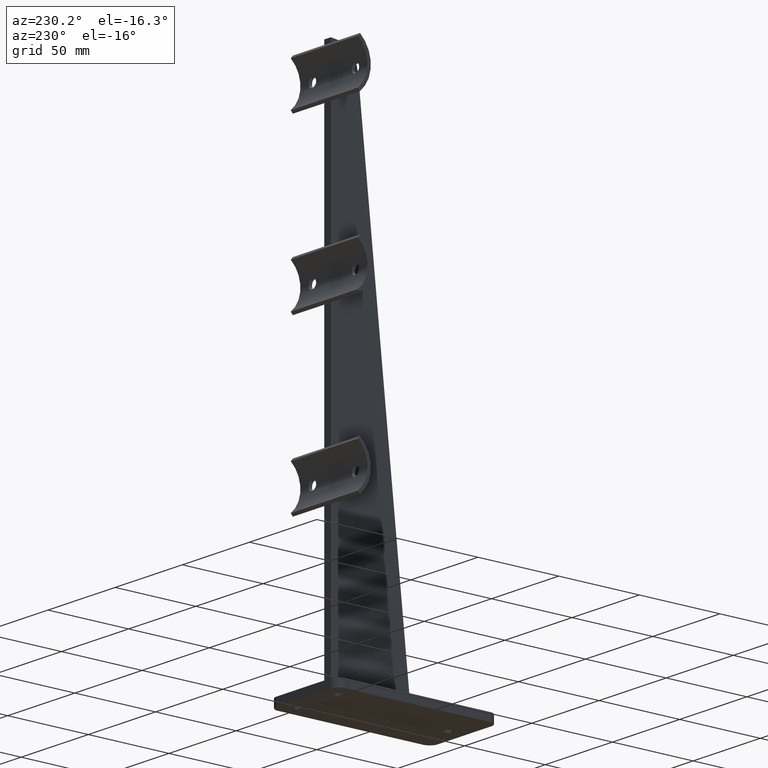
[diagram: clean part render]
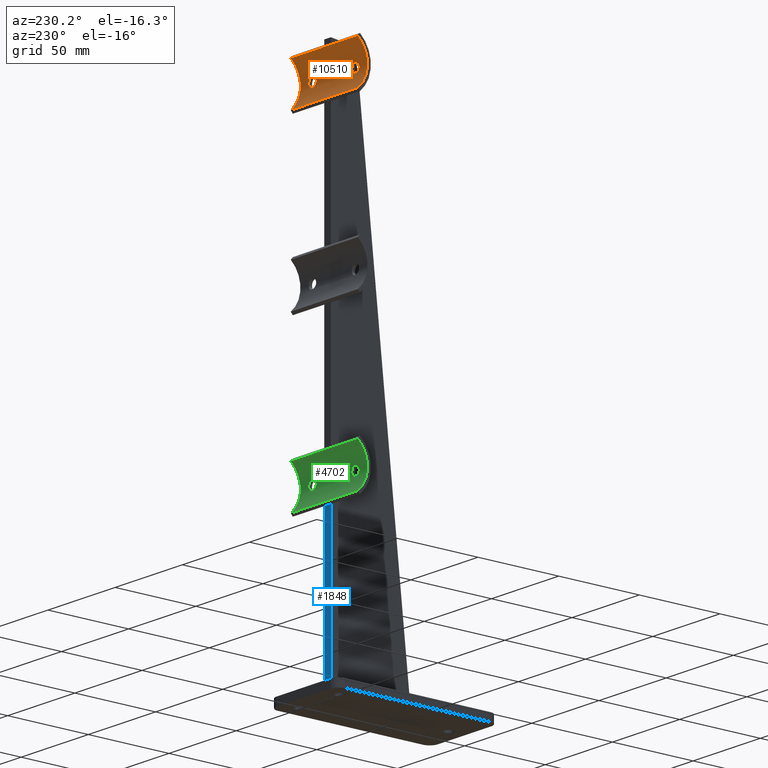
[diagram: same view with three faces highlighted in distinct colors, each labeled with its STEP entity id]
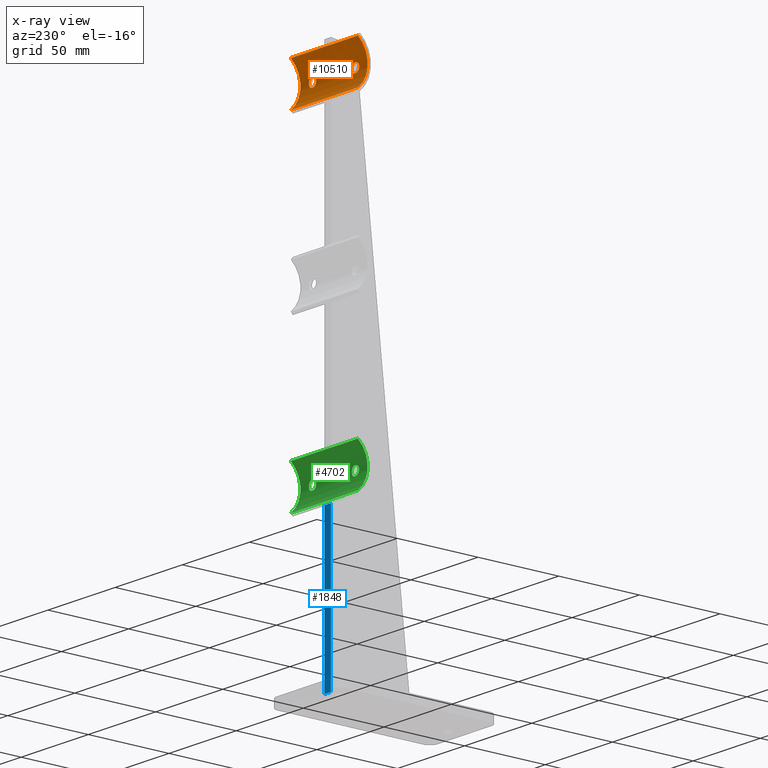
[diagram: x-ray of the same camera — body ghosted, the three highlighted faces saturated]
A machine part, auxiliary view with three faces highlighted in distinct colors.
The next image is the same camera in x-ray (body ghosted, the three faces saturated) — at least one of them is partly hidden behind the body in this view.
Their STEP definitions:

[orange] entity #10510 — the highlighted cylindrical surface (edge-blend (fillet) strip) has radius 16.85 mm, axis along (-1, -0, -0).
#27 = CARTESIAN_POINT ( 'NONE',  ( -18.74989674068944723, 31.00001685240702543, 312.3187487400900864 ) ) ;
#65 = CARTESIAN_POINT ( 'NONE',  ( -17.81710139316977859, 31.12738984087914673, 314.5720614007789777 ) ) ;
#277 = VERTEX_POINT ( 'NONE', #9987 ) ;
#355 = B_SPLINE_CURVE_WITH_KNOTS ( 'NONE', 3,
 ( #6839, #2045, #5811, #8663, #10500, #4831, #8623, #2080, #1149, #3061, #1020, #7671, #979, #4955, #5735, #5774, #27, #6679, #1934, #8587, #2906, #9532, #3823, #4794, #9617, #65, #2941, #11459, #1972, #9576, #11500, #2296, #4070, #2690, #9992, #4252, #443, #1437, #8330, #5168, #7127, #11207, #2647, #4291, #8083, #7081, #8983, #4551, #12134, #3301, #3577, #7372, #10962, #10286, #2386, #9029, #9950, #5266, #3618, #11929, #9280, #10923, #1477, #527 ),
 .UNSPECIFIED., .T., .F.,
 ( 4, 2, 2, 2, 2, 2, 2, 2, 2, 2, 2, 2, 2, 2, 2, 2, 2, 2, 2, 2, 2, 2, 2, 2, 2, 2, 2, 2, 2, 2, 2, 4 ),
 ( 0.000000000000000000, 0.0005381924915633046549, 0.001076384983126609310, 0.001614577474689914182, 0.002152769966253218620, 0.002690962457816523275, 0.003229154949379828363, 0.003767347440943133018, 0.004305539932506437240, 0.004843732424069741895, 0.005381924915633046549, 0.005920117407196351204, 0.006458309898759656727, 0.006996502390322961382, 0.007534694881886266037, 0.008072887373449570692, 0.008611079865012874479, 0.009149272356576180001, 0.009687464848139488993, 0.01022565733970280145, 0.01076384983126611045, 0.01130204232282942117, 0.01184023481439273016, 0.01237842730595604263, 0.01291661979751935335, 0.01345481228908266234, 0.01399300478064597307, 0.01453119727220928380, 0.01506938976377259452, 0.01614577474689909628, 0.01668396723846234803, 0.01722215973002559283 ),
 .UNSPECIFIED. ) ;
#443 = CARTESIAN_POINT ( 'NONE',  ( -15.11386030004125480, 31.20313993747728176, 315.1094738047402757 ) ) ;
#527 = CARTESIAN_POINT ( 'NONE',  ( -15.99999999999996270, 31.22592107814688944, 309.7500000000000568 ) ) ;
#580 = CARTESIAN_POINT ( 'NONE',  ( 18.75014658436252191, 30.99997607674375999, 312.3205098373551323 ) ) ;
#624 = CARTESIAN_POINT ( 'NONE',  ( 13.92864394951007512, 31.09784472354248663, 310.6822973231390961 ) ) ;
#662 = CARTESIAN_POINT ( 'NONE',  ( 18.38770309398687175, 31.05561526023968000, 311.1238799557505672 ) ) ;
#718 = ORIENTED_EDGE ( 'NONE', *, *, #2082, .F. ) ;
#745 = VERTEX_POINT ( 'NONE', #10810 ) ;
#910 = CARTESIAN_POINT ( 'NONE',  ( 17.67755991845479357, 31.14216066407071537, 314.6865117806228227 ) ) ;
#979 = CARTESIAN_POINT ( 'NONE',  ( -18.47137229060054864, 31.04336206135850773, 311.2806231436685493 ) ) ;
#1020 = CARTESIAN_POINT ( 'NONE',  ( -18.18508113167607831, 31.08322744553565187, 310.8205359700820054 ) ) ;
#1149 = CARTESIAN_POINT ( 'NONE',  ( -17.81816963109477570, 31.12726304320736759, 310.4290538148147789 ) ) ;
#1266 = AXIS2_PLACEMENT_3D ( 'NONE', #9526, #12310, #3819 ) ;
#1437 = CARTESIAN_POINT ( 'NONE',  ( -14.78278412133348851, 31.18223707666055944, 314.9724446627155885 ) ) ;
#1477 = CARTESIAN_POINT ( 'NONE',  ( -15.81799534347532266, 31.22592107814690365, 309.7500000000000568 ) ) ;
#1526 = CARTESIAN_POINT ( 'NONE',  ( 18.73176264400263236, 31.00300256753123307, 312.8634836499048788 ) ) ;
#1563 = CARTESIAN_POINT ( 'NONE',  ( 18.66143908557382147, 31.01426261333763179, 313.2151150261996690 ) ) ;
#1596 = DIRECTION ( 'NONE',  ( -1.000000000000000000, -0.000000000000000000, -0.000000000000000000 ) ) ;
#1608 = CARTESIAN_POINT ( 'NONE',  ( 13.26764482324741934, 31.00290692692793471, 312.1401204898583615 ) ) ;
#1631 = ORIENTED_EDGE ( 'NONE', *, *, #4262, .F. ) ;
#1823 = CARTESIAN_POINT ( 'NONE',  ( 18.18818081424955579, 31.08281872234005760, 310.8246799812064864 ) ) ;
#1864 = CARTESIAN_POINT ( 'NONE',  ( 15.81930940758915050, 31.22590944330035967, 315.2499296659554489 ) ) ;
#1907 = CARTESIAN_POINT ( 'NONE',  ( 16.18200465652468978, 31.22592107814690010, 309.7500000000001137 ) ) ;
#1934 = CARTESIAN_POINT ( 'NONE',  ( -18.73217889185071172, 31.00293502748650099, 312.8606549452418903 ) ) ;
#1953 = CIRCLE ( 'NONE', #4537, 16.85000000000002984 ) ;
#1972 = CARTESIAN_POINT ( 'NONE',  ( -17.22018565463240591, 31.18202765517759545, 314.9710464121199607 ) ) ;
#2031 = CARTESIAN_POINT ( 'NONE',  ( -25.00000000000000000, 47.84999999999998010, 312.5000000000000000 ) ) ;
#2045 = CARTESIAN_POINT ( 'NONE',  ( -16.18200465652462228, 31.22592107814687523, 309.7500000000000000 ) ) ;
#2072 = EDGE_CURVE ( 'NONE', #5321, #6694, #5891, .T. ) ;
#2080 = CARTESIAN_POINT ( 'NONE',  ( -17.67698453963376792, 31.14221262062448758, 310.3131112287670703 ) ) ;
#2082 = EDGE_CURVE ( 'NONE', #7453, #7453, #355, .T. ) ;
#2130 = EDGE_CURVE ( 'NONE', #5321, #745, #3062, .T. ) ;
#2296 = CARTESIAN_POINT ( 'NONE',  ( -16.36315093520889263, 31.22289082453801967, 315.2318530200204805 ) ) ;
#2386 = CARTESIAN_POINT ( 'NONE',  ( -13.61229690601312647, 31.05561526023966934, 311.1238799557504535 ) ) ;
#2528 = CARTESIAN_POINT ( 'NONE',  ( 16.88613969995874697, 31.20313993747728532, 315.1094738047402757 ) ) ;
#2647 = CARTESIAN_POINT ( 'NONE',  ( -13.81430204444213139, 31.08314245748785964, 314.1785069477888896 ) ) ;
#2690 = CARTESIAN_POINT ( 'NONE',  ( -15.82145666878412626, 31.22593264365529464, 315.2500699148872059 ) ) ;
#2749 = CARTESIAN_POINT ( 'NONE',  ( 16.71292685360889507, 31.21159035279317351, 315.1621610642596920 ) ) ;
#2790 = CARTESIAN_POINT ( 'NONE',  ( 14.18289860683022852, 31.12738984087915028, 314.5720614007791482 ) ) ;
#2906 = CARTESIAN_POINT ( 'NONE',  ( -18.60989468907389011, 31.02243631840571680, 313.3851467991336222 ) ) ;
#2941 = CARTESIAN_POINT ( 'NONE',  ( -17.67856677578232194, 31.14204833117519300, 314.6856238620794670 ) ) ;
#3017 = EDGE_CURVE ( 'NONE', #745, #277, #7652, .T. ) ;
#3061 = CARTESIAN_POINT ( 'NONE',  ( -18.07135605048988225, 31.09784472354248663, 310.6822973231390392 ) ) ;
#3062 = CIRCLE ( 'NONE', #1266, 16.85000000000002984 ) ;
#3301 = CARTESIAN_POINT ( 'NONE',  ( -13.24985341563747632, 30.99997607674376709, 312.3205098373550186 ) ) ;
#3353 = VECTOR ( 'NONE', #4869, 1000.000000000000000 ) ;
#3435 = CARTESIAN_POINT ( 'NONE',  ( 2.500000000000000000, 47.84999999999998010, 312.5000000000000000 ) ) ;
#3472 = CARTESIAN_POINT ( 'NONE',  ( 18.60974302326847152, 31.02245931335957962, 311.6144778964444981 ) ) ;
#3577 = CARTESIAN_POINT ( 'NONE',  ( -13.26754400383213905, 31.00288953943554660, 312.1416815823783395 ) ) ;
#3618 = CARTESIAN_POINT ( 'NONE',  ( -14.61308990710470290, 31.17143243507801387, 310.0984909594843657 ) ) ;
#3673 = CARTESIAN_POINT ( 'NONE',  ( 14.77981434536758698, 31.18202765517759545, 314.9710464121200175 ) ) ;
#3718 = CARTESIAN_POINT ( 'NONE',  ( 18.38517965336209414, 31.05597373240177106, 313.8804271613863079 ) ) ;
#3819 = DIRECTION ( 'NONE',  ( 0.000000000000000000, 0.000000000000000000, -1.000000000000000000 ) ) ;
#3823 = CARTESIAN_POINT ( 'NONE',  ( -18.38594512453174445, 31.05586323373942648, 313.8790573258363565 ) ) ;
#3832 = CARTESIAN_POINT ( 'NONE',  ( 17.38691009289529177, 31.17143243507800321, 310.0984909594846499 ) ) ;
#3876 = CARTESIAN_POINT ( 'NONE',  ( 16.00000000000004263, 31.22592107814689300, 309.7500000000000568 ) ) ;
#3951 = CARTESIAN_POINT ( 'NONE',  ( 16.00000000000003908, 31.22592107814688944, 309.7500000000000000 ) ) ;
#4070 = CARTESIAN_POINT ( 'NONE',  ( -16.18069059241085483, 31.22590944330036677, 315.2499296659556762 ) ) ;
#4131 = CARTESIAN_POINT ( 'NONE',  ( 15.81799534347538128, 31.22592107814688589, 309.7500000000000000 ) ) ;
#4233 = CARTESIAN_POINT ( 'NONE',  ( -25.00000000000000000, 36.99999999999998579, 299.6081421044133322 ) ) ;
#4252 = CARTESIAN_POINT ( 'NONE',  ( -15.28707314639110137, 31.21159035279317351, 315.1621610642596920 ) ) ;
#4262 = EDGE_CURVE ( 'NONE', #6130, #6130, #8030, .T. ) ;
#4291 = CARTESIAN_POINT ( 'NONE',  ( -13.61482034663790408, 31.05597373240177461, 313.8804271613863648 ) ) ;
#4349 = CARTESIAN_POINT ( 'NONE',  ( 15.28385126544351458, 31.21143786437674805, 315.1612084688597406 ) ) ;
#4381 = VECTOR ( 'NONE', #1596, 1000.000000000000000 ) ;
#4392 = CARTESIAN_POINT ( 'NONE',  ( 13.26782110814929183, 31.00293502748650809, 312.8606549452420040 ) ) ;
#4537 = AXIS2_PLACEMENT_3D ( 'NONE', #2031, #5836, #5872 ) ;
#4551 = CARTESIAN_POINT ( 'NONE',  ( -13.26823735599736587, 31.00300256753124373, 312.8634836499049356 ) ) ;
#4682 = CARTESIAN_POINT ( 'NONE',  ( 14.18183036890518167, 31.12726304320738535, 310.4290538148148357 ) ) ;
#4794 = CARTESIAN_POINT ( 'NONE',  ( -18.18706828623402316, 31.08296200054288860, 314.1766829028081247 ) ) ;
#4831 = CARTESIAN_POINT ( 'NONE',  ( -17.22046022213244143, 31.18200872366885434, 310.0290795493939981 ) ) ;
#4869 = DIRECTION ( 'NONE',  ( -1.000000000000000000, -0.000000000000000000, -0.000000000000000000 ) ) ;
#4912 = CARTESIAN_POINT ( 'NONE',  ( 25.00000000000000000, 36.99999999999998579, 299.6081421044133322 ) ) ;
#4955 = CARTESIAN_POINT ( 'NONE',  ( -18.60862586614666725, 31.02263161657873169, 311.6113875946309690 ) ) ;
#5094 = FACE_BOUND ( 'NONE', #5095, .T. ) ;
#5095 = EDGE_LOOP ( 'NONE', ( #1631 ) ) ;
#5140 = CARTESIAN_POINT ( 'NONE',  ( 15.63909404716797624, 31.22293374046324033, 309.7678897974528240 ) ) ;
#5168 = CARTESIAN_POINT ( 'NONE',  ( -14.32244008154515491, 31.14216066407069761, 314.6865117806228227 ) ) ;
#5266 = CARTESIAN_POINT ( 'NONE',  ( -14.30689312209700148, 31.14181291831045328, 310.3036388615917645 ) ) ;
#5321 = VERTEX_POINT ( 'NONE', #6048 ) ;
#5363 = CARTESIAN_POINT ( 'NONE',  ( 14.77953977786755857, 31.18200872366884013, 310.0290795493937708 ) ) ;
#5406 = CARTESIAN_POINT ( 'NONE',  ( 13.33840932580709193, 31.01423909893655306, 311.7850082820090734 ) ) ;
#5617 = CARTESIAN_POINT ( 'NONE',  ( 13.81491886832392346, 31.08322744553565897, 310.8205359700819486 ) ) ;
#5658 = CARTESIAN_POINT ( 'NONE',  ( 13.39137413385333097, 31.02263161657874235, 311.6113875946311396 ) ) ;
#5684 = ORIENTED_EDGE ( 'NONE', *, *, #2072, .T. ) ;
#5735 = CARTESIAN_POINT ( 'NONE',  ( -18.66159067419290096, 31.01423909893655662, 311.7850082820091302 ) ) ;
#5774 = CARTESIAN_POINT ( 'NONE',  ( -18.73235517675258066, 31.00290692692794181, 312.1401204898582478 ) ) ;
#5780 = CARTESIAN_POINT ( 'NONE',  ( 17.69310687790299141, 31.14181291831044973, 310.3036388615917076 ) ) ;
#5811 = CARTESIAN_POINT ( 'NONE',  ( -16.36090595283203086, 31.22293374046323322, 309.7678897974527672 ) ) ;
#5836 = DIRECTION ( 'NONE',  ( -1.000000000000000000, -0.000000000000000000, -0.000000000000000000 ) ) ;
#5872 = DIRECTION ( 'NONE',  ( 0.000000000000000000, 0.000000000000000000, -1.000000000000000000 ) ) ;
#5891 = LINE ( 'NONE', #4912, #3353 ) ;
#6048 = CARTESIAN_POINT ( 'NONE',  ( 25.00000000000000000, 36.99999999999998579, 299.6081421044133322 ) ) ;
#6107 = CARTESIAN_POINT ( 'NONE',  ( 15.11241139063678496, 31.20307164749258533, 309.8909470132709316 ) ) ;
#6130 = VERTEX_POINT ( 'NONE', #3951 ) ;
#6199 = EDGE_LOOP ( 'NONE', ( #10090, #11423, #10370, #5684 ) ) ;
#6270 = CARTESIAN_POINT ( 'NONE',  ( 18.60842119231626057, 31.02266602949436702, 313.3894934520704396 ) ) ;
#6306 = CARTESIAN_POINT ( 'NONE',  ( 13.25010325931055277, 31.00001685240703253, 312.3187487400902000 ) ) ;
#6350 = CARTESIAN_POINT ( 'NONE',  ( 18.47202851541238644, 31.04326647161761343, 311.2818115653267341 ) ) ;
#6561 = CARTESIAN_POINT ( 'NONE',  ( 13.24989764103138867, 30.99998329453298851, 312.6781042359648382 ) ) ;
#6604 = CARTESIAN_POINT ( 'NONE',  ( 13.92686523941881482, 31.09763536701752074, 314.3158766990432014 ) ) ;
#6642 = CARTESIAN_POINT ( 'NONE',  ( 16.71705282925607960, 31.21141090142647556, 309.8389572437604329 ) ) ;
#6679 = CARTESIAN_POINT ( 'NONE',  ( -18.75010235896860777, 30.99998329453298496, 312.6781042359647245 ) ) ;
#6694 = VERTEX_POINT ( 'NONE', #4233 ) ;
#6839 = CARTESIAN_POINT ( 'NONE',  ( -15.99999999999996270, 31.22592107814688944, 309.7500000000000568 ) ) ;
#6898 = FACE_OUTER_BOUND ( 'NONE', #6199, .T. ) ;
#7081 = CARTESIAN_POINT ( 'NONE',  ( -13.39157880768374120, 31.02266602949435637, 313.3894934520703828 ) ) ;
#7127 = CARTESIAN_POINT ( 'NONE',  ( -14.18414299862430639, 31.12751637135916738, 314.5729912559881996 ) ) ;
#7231 = CARTESIAN_POINT ( 'NONE',  ( 18.66271072627281669, 31.01406095546569830, 311.7895920555115481 ) ) ;
#7269 = CARTESIAN_POINT ( 'NONE',  ( 15.11245027784419293, 31.20307254880669845, 315.1090570889351170 ) ) ;
#7309 = CARTESIAN_POINT ( 'NONE',  ( 13.61387030798286446, 31.05584336001782120, 311.1210278927150057 ) ) ;
#7372 = CARTESIAN_POINT ( 'NONE',  ( -13.33728927372719042, 31.01406095546569830, 311.7895920555115481 ) ) ;
#7453 = VERTEX_POINT ( 'NONE', #9582 ) ;
#7517 = CARTESIAN_POINT ( 'NONE',  ( 13.33810570095380754, 31.01419060602339428, 313.2135770647291793 ) ) ;
#7562 = CARTESIAN_POINT ( 'NONE',  ( 14.61891083212111297, 31.16930847246860026, 314.8847705964345209 ) ) ;
#7640 = CYLINDRICAL_SURFACE ( 'NONE', #11354, 16.85000000000002984 ) ;
#7652 = LINE ( 'NONE', #8374, #4381 ) ;
#7671 = CARTESIAN_POINT ( 'NONE',  ( -18.38612969201714975, 31.05584336001781764, 311.1210278927151762 ) ) ;
#7678 = CARTESIAN_POINT ( 'NONE',  ( 18.07246140710714499, 31.09770694955067682, 310.6835661301248592 ) ) ;
#8030 = B_SPLINE_CURVE_WITH_KNOTS ( 'NONE', 3,
 ( #8135, #4131, #5140, #11813, #6107, #5363, #11346, #10121, #4682, #624, #5617, #7309, #10038, #5658, #5406, #1608, #6306, #6561, #4392, #7517, #12327, #8428, #9376, #8177, #6604, #2790, #11308, #7562, #3673, #7269, #4349, #9083, #1864, #11011, #9121, #2749, #2528, #10345, #11051, #910, #9423, #12063, #10082, #3718, #11977, #6270, #1563, #1526, #8219, #580, #9165, #7231, #3472, #6350, #662, #1823, #7678, #5780, #3832, #8630, #6642, #11509, #1907, #3876 ),
 .UNSPECIFIED., .T., .F.,
 ( 4, 2, 2, 2, 2, 2, 2, 2, 2, 2, 2, 2, 2, 2, 2, 2, 2, 2, 2, 2, 2, 2, 2, 2, 2, 2, 2, 2, 2, 2, 2, 4 ),
 ( 0.000000000000000000, 0.0005381924915633089918, 0.001076384983126612996, 0.001614577474689916784, 0.002152769966253220788, 0.002690962457816524576, 0.003229154949379828363, 0.003767347440943132585, 0.004305539932506435505, 0.004843732424069740160, 0.005381924915633043947, 0.005920117407196348602, 0.006458309898759651523, 0.006996502390322956177, 0.007534694881886260832, 0.008072887373449563753, 0.008611079865012872744, 0.009149272356576181736, 0.009687464848139490728, 0.01022565733970279972, 0.01076384983126610871, 0.01130204232282941770, 0.01184023481439272669, 0.01237842730595603569, 0.01291661979751934294, 0.01345481228908265367, 0.01399300478064596266, 0.01453119727220927165, 0.01506938976377258065, 0.01614577474689908240, 0.01668396723846233762, 0.01722215973002559283 ),
 .UNSPECIFIED. ) ;
#8083 = CARTESIAN_POINT ( 'NONE',  ( -13.53017222058451807, 31.04359179662767332, 313.7227062025803548 ) ) ;
#8097 = DIRECTION ( 'NONE',  ( -1.000000000000000000, -0.000000000000000000, -0.000000000000000000 ) ) ;
#8135 = CARTESIAN_POINT ( 'NONE',  ( 16.00000000000004263, 31.22592107814689300, 309.7500000000000568 ) ) ;
#8177 = CARTESIAN_POINT ( 'NONE',  ( 13.81293171376597861, 31.08296200054288150, 314.1766829028080110 ) ) ;
#8219 = CARTESIAN_POINT ( 'NONE',  ( 18.74985160411930707, 31.00002421890453519, 312.6839540956046335 ) ) ;
#8330 = CARTESIAN_POINT ( 'NONE',  ( -14.62244271723318256, 31.16961175324375688, 314.8869178828575173 ) ) ;
#8374 = CARTESIAN_POINT ( 'NONE',  ( 25.00000000000000000, 36.99999999999999289, 325.3918578955866678 ) ) ;
#8428 = CARTESIAN_POINT ( 'NONE',  ( 13.52808328897528156, 31.04328344392343197, 313.7184674463558736 ) ) ;
#8587 = CARTESIAN_POINT ( 'NONE',  ( -18.66189429904619601, 31.01419060602338362, 313.2135770647291793 ) ) ;
#8623 = CARTESIAN_POINT ( 'NONE',  ( -17.37828868363627421, 31.16954551987002020, 310.1135633365882995 ) ) ;
#8630 = CARTESIAN_POINT ( 'NONE',  ( 16.89090379206555781, 31.20288362299071494, 309.8921547682718938 ) ) ;
#8663 = CARTESIAN_POINT ( 'NONE',  ( -16.71277497925333932, 31.21157677352549342, 309.8379272935167705 ) ) ;
#8983 = CARTESIAN_POINT ( 'NONE',  ( -13.33856091442618208, 31.01426261333763179, 313.2151150261996690 ) ) ;
#9029 = CARTESIAN_POINT ( 'NONE',  ( -13.81181918575044421, 31.08281872234005760, 310.8246799812064864 ) ) ;
#9083 = CARTESIAN_POINT ( 'NONE',  ( 15.63684906479111802, 31.22289082453801967, 315.2318530200205942 ) ) ;
#9121 = CARTESIAN_POINT ( 'NONE',  ( 16.35727624149512494, 31.22303223066798239, 315.2327129227051046 ) ) ;
#9165 = CARTESIAN_POINT ( 'NONE',  ( 18.73245599616786450, 31.00288953943555725, 312.1416815823783395 ) ) ;
#9280 = CARTESIAN_POINT ( 'NONE',  ( -15.28294717074392572, 31.21141090142646846, 309.8389572437603192 ) ) ;
#9376 = CARTESIAN_POINT ( 'NONE',  ( 13.61405487546826265, 31.05586323373941582, 313.8790573258364702 ) ) ;
#9423 = CARTESIAN_POINT ( 'NONE',  ( 17.81585700137570782, 31.12751637135917093, 314.5729912559881996 ) ) ;
#9526 = CARTESIAN_POINT ( 'NONE',  ( 25.00000000000000000, 47.84999999999998010, 312.5000000000000000 ) ) ;
#9532 = CARTESIAN_POINT ( 'NONE',  ( -18.47191671102471489, 31.04328344392343197, 313.7184674463558736 ) ) ;
#9576 = CARTESIAN_POINT ( 'NONE',  ( -16.88754972215579997, 31.20307254880670556, 315.1090570889352307 ) ) ;
#9582 = CARTESIAN_POINT ( 'NONE',  ( -15.99999999999996270, 31.22592107814688944, 309.7500000000000000 ) ) ;
#9617 = CARTESIAN_POINT ( 'NONE',  ( -18.07313476058118695, 31.09763536701751008, 314.3158766990431445 ) ) ;
#9950 = CARTESIAN_POINT ( 'NONE',  ( -13.92753859289285678, 31.09770694955068393, 310.6835661301248024 ) ) ;
#9987 = CARTESIAN_POINT ( 'NONE',  ( -25.00000000000000000, 36.99999999999999289, 325.3918578955866678 ) ) ;
#9992 = CARTESIAN_POINT ( 'NONE',  ( -15.64272375850488039, 31.22303223066798594, 315.2327129227051046 ) ) ;
#10038 = CARTESIAN_POINT ( 'NONE',  ( 13.52862770939947090, 31.04336206135850418, 311.2806231436686630 ) ) ;
#10082 = CARTESIAN_POINT ( 'NONE',  ( 18.18569795555787394, 31.08314245748786675, 314.1785069477889465 ) ) ;
#10090 = ORIENTED_EDGE ( 'NONE', *, *, #11990, .T. ) ;
#10121 = CARTESIAN_POINT ( 'NONE',  ( 14.32301546036623208, 31.14221262062448758, 310.3131112287670135 ) ) ;
#10286 = CARTESIAN_POINT ( 'NONE',  ( -13.52797148458761356, 31.04326647161760278, 311.2818115653267341 ) ) ;
#10345 = CARTESIAN_POINT ( 'NONE',  ( 17.21721587866650793, 31.18223707666055589, 314.9724446627155316 ) ) ;
#10370 = ORIENTED_EDGE ( 'NONE', *, *, #2130, .F. ) ;
#10424 = EDGE_LOOP ( 'NONE', ( #718 ) ) ;
#10500 = CARTESIAN_POINT ( 'NONE',  ( -16.88758860936321682, 31.20307164749259599, 309.8909470132712727 ) ) ;
#10510 = ADVANCED_FACE ( 'NONE', ( #6898, #11067, #5094 ), #7640, .F. ) ;
#10810 = CARTESIAN_POINT ( 'NONE',  ( 25.00000000000000000, 36.99999999999999289, 325.3918578955866678 ) ) ;
#10923 = CARTESIAN_POINT ( 'NONE',  ( -15.63819780857233432, 31.22293221109184103, 309.7678922999344877 ) ) ;
#10962 = CARTESIAN_POINT ( 'NONE',  ( -13.39025697673154447, 31.02245931335958318, 311.6144778964446118 ) ) ;
#11011 = CARTESIAN_POINT ( 'NONE',  ( 16.17854333121588084, 31.22593264365530175, 315.2500699148871490 ) ) ;
#11051 = CARTESIAN_POINT ( 'NONE',  ( 17.37755728276677303, 31.16961175324375333, 314.8869178828574036 ) ) ;
#11052 = DIRECTION ( 'NONE',  ( 0.000000000000000000, 0.000000000000000000, 1.000000000000000000 ) ) ;
#11067 = FACE_BOUND ( 'NONE', #10424, .T. ) ;
#11207 = CARTESIAN_POINT ( 'NONE',  ( -13.93041259236327534, 31.09806536251517528, 314.3197355189698783 ) ) ;
#11308 = CARTESIAN_POINT ( 'NONE',  ( 14.32143322421768339, 31.14204833117519300, 314.6856238620794102 ) ) ;
#11346 = CARTESIAN_POINT ( 'NONE',  ( 14.62171131636372401, 31.16954551987000954, 310.1135633365882427 ) ) ;
#11354 = AXIS2_PLACEMENT_3D ( 'NONE', #3435, #8097, #11052 ) ;
#11423 = ORIENTED_EDGE ( 'NONE', *, *, #3017, .F. ) ;
#11459 = CARTESIAN_POINT ( 'NONE',  ( -17.38108916787888703, 31.16930847246859670, 314.8847705964346346 ) ) ;
#11500 = CARTESIAN_POINT ( 'NONE',  ( -16.71614873455648720, 31.21143786437675161, 315.1612084688596269 ) ) ;
#11509 = CARTESIAN_POINT ( 'NONE',  ( 16.36180219142768166, 31.22293221109184103, 309.7678922999344309 ) ) ;
#11813 = CARTESIAN_POINT ( 'NONE',  ( 15.28722502074665890, 31.21157677352549342, 309.8379272935167705 ) ) ;
#11929 = CARTESIAN_POINT ( 'NONE',  ( -15.10909620793442620, 31.20288362299071494, 309.8921547682720643 ) ) ;
#11977 = CARTESIAN_POINT ( 'NONE',  ( 18.46982777941549614, 31.04359179662768042, 313.7227062025803548 ) ) ;
#11990 = EDGE_CURVE ( 'NONE', #6694, #277, #1953, .T. ) ;
#12063 = CARTESIAN_POINT ( 'NONE',  ( 18.06958740763673177, 31.09806536251516462, 314.3197355189698214 ) ) ;
#12134 = CARTESIAN_POINT ( 'NONE',  ( -13.25014839588070892, 31.00002421890453874, 312.6839540956045198 ) ) ;
#12310 = DIRECTION ( 'NONE',  ( -1.000000000000000000, -0.000000000000000000, -0.000000000000000000 ) ) ;
#12327 = CARTESIAN_POINT ( 'NONE',  ( 13.39010531092611700, 31.02243631840573101, 313.3851467991337358 ) ) ;

[blue] entity #1848 — the highlighted planar face has unit normal (0, -1, -0).
#74 = LINE ( 'NONE', #2975, #1418 ) ;
#187 = EDGE_CURVE ( 'NONE', #12275, #11924, #8122, .T. ) ;
#652 = DIRECTION ( 'NONE',  ( 0.000000000000000000, 1.365917829696338361E-16, -1.000000000000000000 ) ) ;
#676 = DIRECTION ( 'NONE',  ( 1.000000000000000000, 0.000000000000000000, 0.000000000000000000 ) ) ;
#1418 = VECTOR ( 'NONE', #11621, 1000.000000000000000 ) ;
#1570 = VECTOR ( 'NONE', #676, 1000.000000000000000 ) ;
#1848 = ADVANCED_FACE ( 'NONE', ( #10645 ), #7369, .F. ) ;
#1945 = DIRECTION ( 'NONE',  ( 0.000000000000000000, -1.365917829696338361E-16, 1.000000000000000000 ) ) ;
#2125 = ORIENTED_EDGE ( 'NONE', *, *, #187, .F. ) ;
#2308 = EDGE_CURVE ( 'NONE', #12275, #9368, #74, .T. ) ;
#2915 = CARTESIAN_POINT ( 'NONE',  ( 25.00000000000000000, 34.99999999999998579, 98.70869839355255237 ) ) ;
#2975 = CARTESIAN_POINT ( 'NONE',  ( -2.500000000000000000, 34.99999999999999289, 0.000000000000000000 ) ) ;
#3530 = ORIENTED_EDGE ( 'NONE', *, *, #2308, .T. ) ;
#3681 = DIRECTION ( 'NONE',  ( -1.000000000000000000, -0.000000000000000000, -0.000000000000000000 ) ) ;
#3888 = VECTOR ( 'NONE', #3681, 1000.000000000000000 ) ;
#3997 = CARTESIAN_POINT ( 'NONE',  ( 2.499999999999998668, 34.99999999999998579, 98.70869839355255237 ) ) ;
#4768 = CARTESIAN_POINT ( 'NONE',  ( 2.500000000000000000, 34.99999999999999289, 0.000000000000000000 ) ) ;
#5148 = VERTEX_POINT ( 'NONE', #3997 ) ;
#5247 = EDGE_CURVE ( 'NONE', #11924, #5148, #11804, .T. ) ;
#5278 = EDGE_CURVE ( 'NONE', #5148, #9368, #6146, .T. ) ;
#6146 = LINE ( 'NONE', #2915, #3888 ) ;
#6741 = CARTESIAN_POINT ( 'NONE',  ( 2.500000000000000000, 34.99999999999999289, 5.000000000000000000 ) ) ;
#7235 = CARTESIAN_POINT ( 'NONE',  ( -2.499999999999998668, 34.99999999999998579, 98.70869839355255237 ) ) ;
#7369 = PLANE ( 'NONE',  #7399 ) ;
#7399 = AXIS2_PLACEMENT_3D ( 'NONE', #10241, #11204, #652 ) ;
#8122 = LINE ( 'NONE', #10186, #1570 ) ;
#8802 = ORIENTED_EDGE ( 'NONE', *, *, #5278, .F. ) ;
#9255 = VECTOR ( 'NONE', #1945, 1000.000000000000000 ) ;
#9368 = VERTEX_POINT ( 'NONE', #7235 ) ;
#10131 = CARTESIAN_POINT ( 'NONE',  ( -2.500000000000000000, 34.99999999999999289, 5.000000000000000000 ) ) ;
#10186 = CARTESIAN_POINT ( 'NONE',  ( 0.000000000000000000, 34.99999999999999289, 5.000000000000000000 ) ) ;
#10241 = CARTESIAN_POINT ( 'NONE',  ( 2.500000000000000000, 34.99999999999999289, 0.000000000000000000 ) ) ;
#10645 = FACE_OUTER_BOUND ( 'NONE', #11517, .T. ) ;
#11204 = DIRECTION ( 'NONE',  ( 0.000000000000000000, -1.000000000000000000, -1.365917829696338361E-16 ) ) ;
#11517 = EDGE_LOOP ( 'NONE', ( #8802, #12352, #2125, #3530 ) ) ;
#11621 = DIRECTION ( 'NONE',  ( 0.000000000000000000, -1.365917829696338361E-16, 1.000000000000000000 ) ) ;
#11804 = LINE ( 'NONE', #4768, #9255 ) ;
#11924 = VERTEX_POINT ( 'NONE', #6741 ) ;
#12275 = VERTEX_POINT ( 'NONE', #10131 ) ;
#12352 = ORIENTED_EDGE ( 'NONE', *, *, #5247, .F. ) ;

[green] entity #4702 — the highlighted cylindrical surface (edge-blend (fillet) strip) has radius 16.85 mm, axis along (-1, -0, -0).
#39 = CARTESIAN_POINT ( 'NONE',  ( -17.38108916787887637, 31.16930847246860381, 114.8847705964347625 ) ) ;
#78 = CARTESIAN_POINT ( 'NONE',  ( -15.28294717074393283, 31.21141090142647911, 109.8389572437603334 ) ) ;
#180 = CARTESIAN_POINT ( 'NONE',  ( 13.39137413385328834, 31.02263161657874235, 111.6113875946310543 ) ) ;
#269 = EDGE_CURVE ( 'NONE', #8317, #12031, #4693, .T. ) ;
#270 = CARTESIAN_POINT ( 'NONE',  ( 14.18289860683018411, 31.12738984087915739, 114.5720614007790203 ) ) ;
#315 = CARTESIAN_POINT ( 'NONE',  ( 13.92864394951007156, 31.09784472354249019, 110.6822973231390819 ) ) ;
#352 = CARTESIAN_POINT ( 'NONE',  ( 18.18818081424949540, 31.08281872234006471, 110.8246799812065859 ) ) ;
#603 = AXIS2_PLACEMENT_3D ( 'NONE', #4586, #1715, #8245 ) ;
#760 = CARTESIAN_POINT ( 'NONE',  ( -18.60862586614666725, 31.02263161657873880, 111.6113875946310685 ) ) ;
#801 = CARTESIAN_POINT ( 'NONE',  ( -17.37828868363627777, 31.16954551987002731, 110.1135633365882995 ) ) ;
#917 = CARTESIAN_POINT ( 'NONE',  ( -13.33856091442616965, 31.01426261333763179, 113.2151150261995269 ) ) ;
#936 = FACE_OUTER_BOUND ( 'NONE', #11010, .T. ) ;
#958 = CARTESIAN_POINT ( 'NONE',  ( -16.88754972215579286, 31.20307254880670556, 115.1090570889352875 ) ) ;
#998 = CARTESIAN_POINT ( 'NONE',  ( -13.25014839588070892, 31.00002421890453164, 112.6839540956046335 ) ) ;
#1038 = CARTESIAN_POINT ( 'NONE',  ( -18.60989468907387945, 31.02243631840573101, 113.3851467991337074 ) ) ;
#1077 = CARTESIAN_POINT ( 'NONE',  ( -14.32244008154516735, 31.14216066407071182, 114.6865117806227801 ) ) ;
#1088 = VECTOR ( 'NONE', #4879, 1000.000000000000000 ) ;
#1144 = CARTESIAN_POINT ( 'NONE',  ( 14.77981434536755145, 31.18202765517759545, 114.9710464121201170 ) ) ;
#1183 = CARTESIAN_POINT ( 'NONE',  ( 18.60842119231621083, 31.02266602949437768, 113.3894934520704396 ) ) ;
#1221 = CARTESIAN_POINT ( 'NONE',  ( 17.37755728276674105, 31.16961175324377109, 114.8869178828574036 ) ) ;
#1262 = CARTESIAN_POINT ( 'NONE',  ( 17.67755991845476871, 31.14216066407071537, 114.6865117806227943 ) ) ;
#1264 = EDGE_LOOP ( 'NONE', ( #7097 ) ) ;
#1302 = CARTESIAN_POINT ( 'NONE',  ( 14.32301546036617879, 31.14221262062449114, 110.3131112287669993 ) ) ;
#1650 = VECTOR ( 'NONE', #2684, 1000.000000000000000 ) ;
#1715 = DIRECTION ( 'NONE',  ( -1.000000000000000000, -0.000000000000000000, -0.000000000000000000 ) ) ;
#1748 = CARTESIAN_POINT ( 'NONE',  ( -18.07135605048988580, 31.09784472354248663, 110.6822973231390677 ) ) ;
#1948 = CARTESIAN_POINT ( 'NONE',  ( -18.73235517675257711, 31.00290692692794892, 112.1401204898584467 ) ) ;
#1986 = CARTESIAN_POINT ( 'NONE',  ( -14.78278412133348496, 31.18223707666055944, 114.9724446627154606 ) ) ;
#2025 = CARTESIAN_POINT ( 'NONE',  ( -18.66189429904618180, 31.01419060602338362, 113.2135770647291650 ) ) ;
#2076 = CARTESIAN_POINT ( 'NONE',  ( 18.66143908557378239, 31.01426261333764600, 113.2151150261995838 ) ) ;
#2118 = CARTESIAN_POINT ( 'NONE',  ( 16.71292685360886310, 31.21159035279317706, 115.1621610642596494 ) ) ;
#2120 = ORIENTED_EDGE ( 'NONE', *, *, #11340, .T. ) ;
#2159 = CARTESIAN_POINT ( 'NONE',  ( 13.92686523941877041, 31.09763536701752074, 114.3158766990431587 ) ) ;
#2180 = DIRECTION ( 'NONE',  ( -1.000000000000000000, -0.000000000000000000, -0.000000000000000000 ) ) ;
#2203 = CARTESIAN_POINT ( 'NONE',  ( 18.38517965336206217, 31.05597373240177816, 113.8804271613861943 ) ) ;
#2249 = CARTESIAN_POINT ( 'NONE',  ( 15.99999999999998934, 31.22592107814689655, 109.7500000000000142 ) ) ;
#2500 = CARTESIAN_POINT ( 'NONE',  ( 16.89090379206549031, 31.20288362299072915, 109.8921547682720643 ) ) ;
#2626 = CARTESIAN_POINT ( 'NONE',  ( -16.71277497925333932, 31.21157677352549342, 109.8379272935167847 ) ) ;
#2684 = DIRECTION ( 'NONE',  ( -1.000000000000000000, -0.000000000000000000, -0.000000000000000000 ) ) ;
#2687 = EDGE_LOOP ( 'NONE', ( #12062 ) ) ;
#2732 = LINE ( 'NONE', #5707, #1088 ) ;
#2878 = CARTESIAN_POINT ( 'NONE',  ( -13.33728927372718331, 31.01406095546568409, 111.7895920555114202 ) ) ;
#2918 = CARTESIAN_POINT ( 'NONE',  ( -14.62244271723318789, 31.16961175324376399, 114.8869178828573610 ) ) ;
#2957 = CARTESIAN_POINT ( 'NONE',  ( -17.81710139316976438, 31.12738984087915384, 114.5720614007790203 ) ) ;
#2995 = CARTESIAN_POINT ( 'NONE',  ( -13.26754400383214261, 31.00288953943557146, 112.1416815823782827 ) ) ;
#3057 = CARTESIAN_POINT ( 'NONE',  ( 15.28385126544345951, 31.21143786437675161, 115.1612084688598685 ) ) ;
#3103 = CARTESIAN_POINT ( 'NONE',  ( 18.47202851541233670, 31.04326647161760988, 111.2818115653267341 ) ) ;
#3145 = CARTESIAN_POINT ( 'NONE',  ( 17.81585700137568651, 31.12751637135917449, 114.5729912559882138 ) ) ;
#3160 = DIRECTION ( 'NONE',  ( 0.000000000000000000, 0.000000000000000000, 1.000000000000000000 ) ) ;
#3169 = CARTESIAN_POINT ( 'NONE',  ( -25.00000000000000000, 36.99999999999997158, 125.3918578955866536 ) ) ;
#3180 = CARTESIAN_POINT ( 'NONE',  ( 14.18183036890517101, 31.12726304320736759, 110.4290538148147647 ) ) ;
#3200 = ORIENTED_EDGE ( 'NONE', *, *, #269, .T. ) ;
#3215 = CARTESIAN_POINT ( 'NONE',  ( 16.36180219142760350, 31.22293221109183747, 109.7678922999344024 ) ) ;
#3225 = VERTEX_POINT ( 'NONE', #9608 ) ;
#3273 = CARTESIAN_POINT ( 'NONE',  ( -25.00000000000000000, 36.99999999999997158, 99.60814210441334637 ) ) ;
#3321 = CYLINDRICAL_SURFACE ( 'NONE', #6799, 16.84999999999999076 ) ;
#3481 = B_SPLINE_CURVE_WITH_KNOTS ( 'NONE', 3,
 ( #2249, #4907, #8733, #6835, #4025, #9779, #11747, #1302, #3180, #315, #7825, #10660, #11581, #180, #9821, #4066, #5885, #7910, #11707, #4950, #7954, #8887, #11625, #6009, #2159, #270, #10704, #8805, #1144, #5967, #3057, #10739, #7783, #11664, #7871, #2118, #5921, #6919, #1221, #1262, #3145, #6878, #4110, #2203, #8772, #1183, #2076, #9695, #10786, #5031, #3986, #5078, #6045, #3103, #9653, #352, #6998, #3940, #10619, #2500, #6904, #3215, #6917, #11745 ),
 .UNSPECIFIED., .T., .F.,
 ( 4, 2, 2, 2, 2, 2, 2, 2, 2, 2, 2, 2, 2, 2, 2, 2, 2, 2, 2, 2, 2, 2, 2, 2, 2, 2, 2, 2, 2, 2, 2, 4 ),
 ( 0.000000000000000000, 0.0005381924915633062812, 0.001076384983126607575, 0.001614577474689908544, 0.002152769966253209946, 0.002690962457816511132, 0.003229154949379811883, 0.003767347440943113069, 0.004305539932506413821, 0.004843732424069715006, 0.005381924915633017059, 0.005920117407196318245, 0.006458309898759619430, 0.006996502390322920616, 0.007534694881886222668, 0.008072887373449523854, 0.008611079865012825907, 0.009149272356576126225, 0.009687464848139426543, 0.01022565733970272686, 0.01076384983126602891, 0.01130204232282932923, 0.01184023481439262955, 0.01237842730595592987, 0.01291661979751922845, 0.01345481228908252877, 0.01399300478064583082, 0.01453119727220913114, 0.01506938976377243146, 0.01614577474689903383, 0.01668396723846232721, 0.01722215973002562059 ),
 .UNSPECIFIED. ) ;
#3492 = DIRECTION ( 'NONE',  ( -1.000000000000000000, -0.000000000000000000, -0.000000000000000000 ) ) ;
#3727 = CARTESIAN_POINT ( 'NONE',  ( -13.52797148458761889, 31.04326647161762409, 111.2818115653267199 ) ) ;
#3842 = CARTESIAN_POINT ( 'NONE',  ( -15.64272375850486796, 31.22303223066797528, 115.2327129227052041 ) ) ;
#3887 = CARTESIAN_POINT ( 'NONE',  ( -15.82145666878410495, 31.22593264365529109, 115.2500699148870780 ) ) ;
#3940 = CARTESIAN_POINT ( 'NONE',  ( 17.69310687790294168, 31.14181291831046039, 110.3036388615917502 ) ) ;
#3950 = CARTESIAN_POINT ( 'NONE',  ( 25.00000000000000000, 36.99999999999997158, 99.60814210441334637 ) ) ;
#3986 = CARTESIAN_POINT ( 'NONE',  ( 18.73245599616782187, 31.00288953943556081, 112.1416815823782400 ) ) ;
#4025 = CARTESIAN_POINT ( 'NONE',  ( 15.11241139063674588, 31.20307164749258533, 109.8909470132709885 ) ) ;
#4066 = CARTESIAN_POINT ( 'NONE',  ( 13.26764482324737138, 31.00290692692794536, 112.1401204898584183 ) ) ;
#4081 = EDGE_CURVE ( 'NONE', #11789, #11789, #4738, .T. ) ;
#4110 = CARTESIAN_POINT ( 'NONE',  ( 18.18569795555785618, 31.08314245748786320, 114.1785069477888044 ) ) ;
#4354 = FACE_BOUND ( 'NONE', #1264, .T. ) ;
#4398 = VERTEX_POINT ( 'NONE', #3950 ) ;
#4532 = CARTESIAN_POINT ( 'NONE',  ( -16.18200465652462583, 31.22592107814690010, 109.7500000000000000 ) ) ;
#4586 = CARTESIAN_POINT ( 'NONE',  ( 25.00000000000000000, 47.84999999999998010, 112.5000000000000000 ) ) ;
#4617 = CARTESIAN_POINT ( 'NONE',  ( -16.36090595283203797, 31.22293374046322256, 109.7678897974527814 ) ) ;
#4689 = CARTESIAN_POINT ( 'NONE',  ( -15.11386030004124592, 31.20313993747728176, 115.1094738047401904 ) ) ;
#4693 = CIRCLE ( 'NONE', #6444, 16.85000000000000497 ) ;
#4702 = ADVANCED_FACE ( 'NONE', ( #936, #10617, #4354 ), #3321, .F. ) ;
#4738 = B_SPLINE_CURVE_WITH_KNOTS ( 'NONE', 3,
 ( #6486, #4532, #4617, #2626, #12199, #7480, #801, #12159, #7438, #1748, #11191, #6451, #8355, #760, #7396, #1948, #5709, #9547, #4771, #2025, #1038, #5827, #8603, #10443, #8560, #2957, #6773, #39, #8642, #958, #11433, #7687, #12339, #3887, #3842, #11477, #4689, #1986, #2918, #1077, #7725, #9588, #10519, #10564, #6615, #7612, #917, #5750, #998, #7572, #2995, #2878, #8679, #3727, #5788, #4809, #10401, #4843, #6695, #11355, #78, #5671, #11393, #11518 ),
 .UNSPECIFIED., .T., .F.,
 ( 4, 2, 2, 2, 2, 2, 2, 2, 2, 2, 2, 2, 2, 2, 2, 2, 2, 2, 2, 2, 2, 2, 2, 2, 2, 2, 2, 2, 2, 2, 2, 4 ),
 ( 0.000000000000000000, 0.0005381924915633040044, 0.001076384983126608009, 0.001614577474689911796, 0.002152769966253216018, 0.002690962457816519805, 0.003229154949379823593, 0.003767347440943127814, 0.004305539932506432035, 0.004843732424069735823, 0.005381924915633039611, 0.005920117407196344265, 0.006458309898759647186, 0.006996502390322950973, 0.007534694881886255628, 0.008072887373449560283, 0.008611079865012864071, 0.009149272356576167858, 0.009687464848139464707, 0.01022565733970276329, 0.01076384983126606187, 0.01130204232282936046, 0.01184023481439265904, 0.01237842730595595589, 0.01291661979751925447, 0.01345481228908255479, 0.01399300478064585164, 0.01453119727220915022, 0.01506938976377244707, 0.01614577474689904771, 0.01668396723846233762, 0.01722215973002562753 ),
 .UNSPECIFIED. ) ;
#4771 = CARTESIAN_POINT ( 'NONE',  ( -18.73217889185070462, 31.00293502748650809, 112.8606549452420467 ) ) ;
#4809 = CARTESIAN_POINT ( 'NONE',  ( -13.81181918575045842, 31.08281872234005760, 110.8246799812065433 ) ) ;
#4843 = CARTESIAN_POINT ( 'NONE',  ( -14.30689312209701214, 31.14181291831046394, 110.3036388615917218 ) ) ;
#4874 = CARTESIAN_POINT ( 'NONE',  ( -15.99999999999996270, 31.22592107814690010, 109.7500000000000000 ) ) ;
#4879 = DIRECTION ( 'NONE',  ( -1.000000000000000000, -0.000000000000000000, -0.000000000000000000 ) ) ;
#4907 = CARTESIAN_POINT ( 'NONE',  ( 15.81799534347532976, 31.22592107814690010, 109.7500000000000142 ) ) ;
#4950 = CARTESIAN_POINT ( 'NONE',  ( 13.33810570095376491, 31.01419060602338718, 113.2135770647291650 ) ) ;
#5031 = CARTESIAN_POINT ( 'NONE',  ( 18.75014658436247572, 30.99997607674377420, 112.3205098373549902 ) ) ;
#5078 = CARTESIAN_POINT ( 'NONE',  ( 18.66271072627277050, 31.01406095546569475, 111.7895920555114770 ) ) ;
#5219 = ORIENTED_EDGE ( 'NONE', *, *, #6460, .F. ) ;
#5485 = EDGE_CURVE ( 'NONE', #4398, #3225, #10601, .T. ) ;
#5671 = CARTESIAN_POINT ( 'NONE',  ( -15.63819780857234321, 31.22293221109184458, 109.7678922999344309 ) ) ;
#5707 = CARTESIAN_POINT ( 'NONE',  ( 25.00000000000000000, 36.99999999999997158, 99.60814210441334637 ) ) ;
#5709 = CARTESIAN_POINT ( 'NONE',  ( -18.74989674068944723, 31.00001685240703964, 112.3187487400902569 ) ) ;
#5750 = CARTESIAN_POINT ( 'NONE',  ( -13.26823735599736587, 31.00300256753125439, 112.8634836499048504 ) ) ;
#5788 = CARTESIAN_POINT ( 'NONE',  ( -13.61229690601313358, 31.05561526023966579, 111.1238799557504393 ) ) ;
#5827 = CARTESIAN_POINT ( 'NONE',  ( -18.47191671102470067, 31.04328344392344974, 113.7184674463561294 ) ) ;
#5885 = CARTESIAN_POINT ( 'NONE',  ( 13.25010325931050481, 31.00001685240703253, 112.3187487400903279 ) ) ;
#5921 = CARTESIAN_POINT ( 'NONE',  ( 16.88613969995869724, 31.20313993747728176, 115.1094738047401904 ) ) ;
#5967 = CARTESIAN_POINT ( 'NONE',  ( 15.11245027784416095, 31.20307254880670556, 115.1090570889353160 ) ) ;
#6009 = CARTESIAN_POINT ( 'NONE',  ( 13.81293171376592177, 31.08296200054287439, 114.1766829028080821 ) ) ;
#6045 = CARTESIAN_POINT ( 'NONE',  ( 18.60974302326841112, 31.02245931335956541, 111.6144778964445408 ) ) ;
#6329 = CARTESIAN_POINT ( 'NONE',  ( -25.00000000000000000, 47.84999999999998010, 112.5000000000000000 ) ) ;
#6444 = AXIS2_PLACEMENT_3D ( 'NONE', #6329, #3492, #9106 ) ;
#6451 = CARTESIAN_POINT ( 'NONE',  ( -18.38612969201714264, 31.05584336001779988, 111.1210278927150483 ) ) ;
#6460 = EDGE_CURVE ( 'NONE', #3225, #12031, #11631, .T. ) ;
#6486 = CARTESIAN_POINT ( 'NONE',  ( -15.99999999999996270, 31.22592107814690010, 109.7500000000000000 ) ) ;
#6615 = CARTESIAN_POINT ( 'NONE',  ( -13.53017222058451630, 31.04359179662767332, 113.7227062025802979 ) ) ;
#6674 = ORIENTED_EDGE ( 'NONE', *, *, #5485, .F. ) ;
#6695 = CARTESIAN_POINT ( 'NONE',  ( -14.61308990710472422, 31.17143243507800676, 110.0984909594845362 ) ) ;
#6773 = CARTESIAN_POINT ( 'NONE',  ( -17.67856677578231128, 31.14204833117519655, 114.6856238620795807 ) ) ;
#6799 = AXIS2_PLACEMENT_3D ( 'NONE', #7886, #2180, #3160 ) ;
#6835 = CARTESIAN_POINT ( 'NONE',  ( 15.28722502074661627, 31.21157677352550053, 109.8379272935167990 ) ) ;
#6878 = CARTESIAN_POINT ( 'NONE',  ( 18.06958740763670335, 31.09806536251516107, 114.3197355189697362 ) ) ;
#6904 = CARTESIAN_POINT ( 'NONE',  ( 16.71705282925602987, 31.21141090142647911, 109.8389572437603761 ) ) ;
#6917 = CARTESIAN_POINT ( 'NONE',  ( 16.18200465652464715, 31.22592107814689300, 109.7500000000000000 ) ) ;
#6919 = CARTESIAN_POINT ( 'NONE',  ( 17.21721587866646175, 31.18223707666055944, 114.9724446627154748 ) ) ;
#6998 = CARTESIAN_POINT ( 'NONE',  ( 18.07246140710707394, 31.09770694955068393, 110.6835661301248024 ) ) ;
#7097 = ORIENTED_EDGE ( 'NONE', *, *, #7333, .F. ) ;
#7333 = EDGE_CURVE ( 'NONE', #8053, #8053, #3481, .T. ) ;
#7396 = CARTESIAN_POINT ( 'NONE',  ( -18.66159067419291162, 31.01423909893657793, 111.7850082820090734 ) ) ;
#7438 = CARTESIAN_POINT ( 'NONE',  ( -17.81816963109478635, 31.12726304320738535, 110.4290538148148215 ) ) ;
#7480 = CARTESIAN_POINT ( 'NONE',  ( -17.22046022213243077, 31.18200872366884724, 110.0290795493939555 ) ) ;
#7572 = CARTESIAN_POINT ( 'NONE',  ( -13.24985341563747809, 30.99997607674377065, 112.3205098373550612 ) ) ;
#7612 = CARTESIAN_POINT ( 'NONE',  ( -13.39157880768373765, 31.02266602949436702, 113.3894934520704112 ) ) ;
#7687 = CARTESIAN_POINT ( 'NONE',  ( -16.36315093520888908, 31.22289082453803388, 115.2318530200205089 ) ) ;
#7725 = CARTESIAN_POINT ( 'NONE',  ( -14.18414299862426731, 31.12751637135916027, 114.5729912559881569 ) ) ;
#7783 = CARTESIAN_POINT ( 'NONE',  ( 15.81930940758909721, 31.22590944330037033, 115.2499296659556052 ) ) ;
#7825 = CARTESIAN_POINT ( 'NONE',  ( 13.81491886832387905, 31.08322744553565897, 110.8205359700819344 ) ) ;
#7871 = CARTESIAN_POINT ( 'NONE',  ( 16.35727624149507875, 31.22303223066798594, 115.2327129227052183 ) ) ;
#7886 = CARTESIAN_POINT ( 'NONE',  ( 2.500000000000000000, 47.84999999999998010, 112.5000000000000000 ) ) ;
#7910 = CARTESIAN_POINT ( 'NONE',  ( 13.24989764103134071, 30.99998329453298496, 112.6781042359647671 ) ) ;
#7954 = CARTESIAN_POINT ( 'NONE',  ( 13.39010531092607792, 31.02243631840573101, 113.3851467991336648 ) ) ;
#8053 = VERTEX_POINT ( 'NONE', #11385 ) ;
#8245 = DIRECTION ( 'NONE',  ( 0.000000000000000000, 0.000000000000000000, -1.000000000000000000 ) ) ;
#8317 = VERTEX_POINT ( 'NONE', #3273 ) ;
#8355 = CARTESIAN_POINT ( 'NONE',  ( -18.47137229060052732, 31.04336206135849352, 111.2806231436685351 ) ) ;
#8560 = CARTESIAN_POINT ( 'NONE',  ( -18.07313476058119406, 31.09763536701752074, 114.3158766990431445 ) ) ;
#8603 = CARTESIAN_POINT ( 'NONE',  ( -18.38594512453174801, 31.05586323373941227, 113.8790573258363423 ) ) ;
#8642 = CARTESIAN_POINT ( 'NONE',  ( -17.22018565463240591, 31.18202765517760255, 114.9710464121201738 ) ) ;
#8679 = CARTESIAN_POINT ( 'NONE',  ( -13.39025697673154269, 31.02245931335957607, 111.6144778964445550 ) ) ;
#8733 = CARTESIAN_POINT ( 'NONE',  ( 15.63909404716791762, 31.22293374046322256, 109.7678897974527814 ) ) ;
#8772 = CARTESIAN_POINT ( 'NONE',  ( 18.46982777941544640, 31.04359179662767332, 113.7227062025803122 ) ) ;
#8805 = CARTESIAN_POINT ( 'NONE',  ( 14.61891083212107567, 31.16930847246860381, 114.8847705964347483 ) ) ;
#8887 = CARTESIAN_POINT ( 'NONE',  ( 13.52808328897525314, 31.04328344392344263, 113.7184674463560725 ) ) ;
#9106 = DIRECTION ( 'NONE',  ( 0.000000000000000000, 0.000000000000000000, -1.000000000000000000 ) ) ;
#9547 = CARTESIAN_POINT ( 'NONE',  ( -18.75010235896860777, 30.99998329453298851, 112.6781042359647671 ) ) ;
#9588 = CARTESIAN_POINT ( 'NONE',  ( -13.93041259236324336, 31.09806536251516818, 114.3197355189697504 ) ) ;
#9608 = CARTESIAN_POINT ( 'NONE',  ( 25.00000000000000000, 36.99999999999997158, 125.3918578955866536 ) ) ;
#9653 = CARTESIAN_POINT ( 'NONE',  ( 18.38770309398682556, 31.05561526023967289, 111.1238799557504535 ) ) ;
#9695 = CARTESIAN_POINT ( 'NONE',  ( 18.73176264400259328, 31.00300256753124373, 112.8634836499048504 ) ) ;
#9779 = CARTESIAN_POINT ( 'NONE',  ( 14.77953977786751594, 31.18200872366884013, 110.0290795493939271 ) ) ;
#9821 = CARTESIAN_POINT ( 'NONE',  ( 13.33840932580704752, 31.01423909893657438, 111.7850082820090165 ) ) ;
#10401 = CARTESIAN_POINT ( 'NONE',  ( -13.92753859289287632, 31.09770694955067327, 110.6835661301248024 ) ) ;
#10443 = CARTESIAN_POINT ( 'NONE',  ( -18.18706828623403382, 31.08296200054287795, 114.1766829028081247 ) ) ;
#10519 = CARTESIAN_POINT ( 'NONE',  ( -13.81430204444209942, 31.08314245748785964, 114.1785069477888186 ) ) ;
#10564 = CARTESIAN_POINT ( 'NONE',  ( -13.61482034663788632, 31.05597373240177106, 113.8804271613862085 ) ) ;
#10601 = CIRCLE ( 'NONE', #603, 16.85000000000000497 ) ;
#10617 = FACE_BOUND ( 'NONE', #2687, .T. ) ;
#10619 = CARTESIAN_POINT ( 'NONE',  ( 17.38691009289523492, 31.17143243507802453, 110.0984909594845362 ) ) ;
#10660 = CARTESIAN_POINT ( 'NONE',  ( 13.61387030798280762, 31.05584336001780343, 111.1210278927150483 ) ) ;
#10704 = CARTESIAN_POINT ( 'NONE',  ( 14.32143322421764786, 31.14204833117519300, 114.6856238620796091 ) ) ;
#10739 = CARTESIAN_POINT ( 'NONE',  ( 15.63684906479106296, 31.22289082453803388, 115.2318530200204805 ) ) ;
#10786 = CARTESIAN_POINT ( 'NONE',  ( 18.74985160411925733, 31.00002421890453519, 112.6839540956046477 ) ) ;
#11010 = EDGE_LOOP ( 'NONE', ( #3200, #5219, #6674, #2120 ) ) ;
#11191 = CARTESIAN_POINT ( 'NONE',  ( -18.18508113167607831, 31.08322744553566963, 110.8205359700819628 ) ) ;
#11340 = EDGE_CURVE ( 'NONE', #4398, #8317, #2732, .T. ) ;
#11355 = CARTESIAN_POINT ( 'NONE',  ( -15.10909620793446173, 31.20288362299072915, 109.8921547682720501 ) ) ;
#11385 = CARTESIAN_POINT ( 'NONE',  ( 15.99999999999998934, 31.22592107814690010, 109.7500000000000000 ) ) ;
#11393 = CARTESIAN_POINT ( 'NONE',  ( -15.81799534347530134, 31.22592107814690010, 109.7500000000000000 ) ) ;
#11433 = CARTESIAN_POINT ( 'NONE',  ( -16.71614873455648365, 31.21143786437675871, 115.1612084688598685 ) ) ;
#11477 = CARTESIAN_POINT ( 'NONE',  ( -15.28707314639109249, 31.21159035279316996, 115.1621610642596494 ) ) ;
#11518 = CARTESIAN_POINT ( 'NONE',  ( -15.99999999999996270, 31.22592107814690010, 109.7500000000000000 ) ) ;
#11581 = CARTESIAN_POINT ( 'NONE',  ( 13.52862770939942294, 31.04336206135850063, 111.2806231436685636 ) ) ;
#11625 = CARTESIAN_POINT ( 'NONE',  ( 13.61405487546820225, 31.05586323373943003, 113.8790573258363423 ) ) ;
#11631 = LINE ( 'NONE', #12261, #1650 ) ;
#11664 = CARTESIAN_POINT ( 'NONE',  ( 16.17854333121582400, 31.22593264365529109, 115.2500699148870495 ) ) ;
#11707 = CARTESIAN_POINT ( 'NONE',  ( 13.26782110814924742, 31.00293502748651520, 112.8606549452420325 ) ) ;
#11745 = CARTESIAN_POINT ( 'NONE',  ( 15.99999999999998934, 31.22592107814689655, 109.7500000000000142 ) ) ;
#11747 = CARTESIAN_POINT ( 'NONE',  ( 14.62171131636367605, 31.16954551987002020, 110.1135633365882143 ) ) ;
#11789 = VERTEX_POINT ( 'NONE', #4874 ) ;
#12031 = VERTEX_POINT ( 'NONE', #3169 ) ;
#12062 = ORIENTED_EDGE ( 'NONE', *, *, #4081, .F. ) ;
#12159 = CARTESIAN_POINT ( 'NONE',  ( -17.67698453963376082, 31.14221262062449469, 110.3131112287669851 ) ) ;
#12199 = CARTESIAN_POINT ( 'NONE',  ( -16.88758860936321682, 31.20307164749260309, 109.8909470132710737 ) ) ;
#12261 = CARTESIAN_POINT ( 'NONE',  ( 25.00000000000000000, 36.99999999999997158, 125.3918578955866536 ) ) ;
#12339 = CARTESIAN_POINT ( 'NONE',  ( -16.18069059241085839, 31.22590944330038809, 115.2499296659556336 ) ) ;